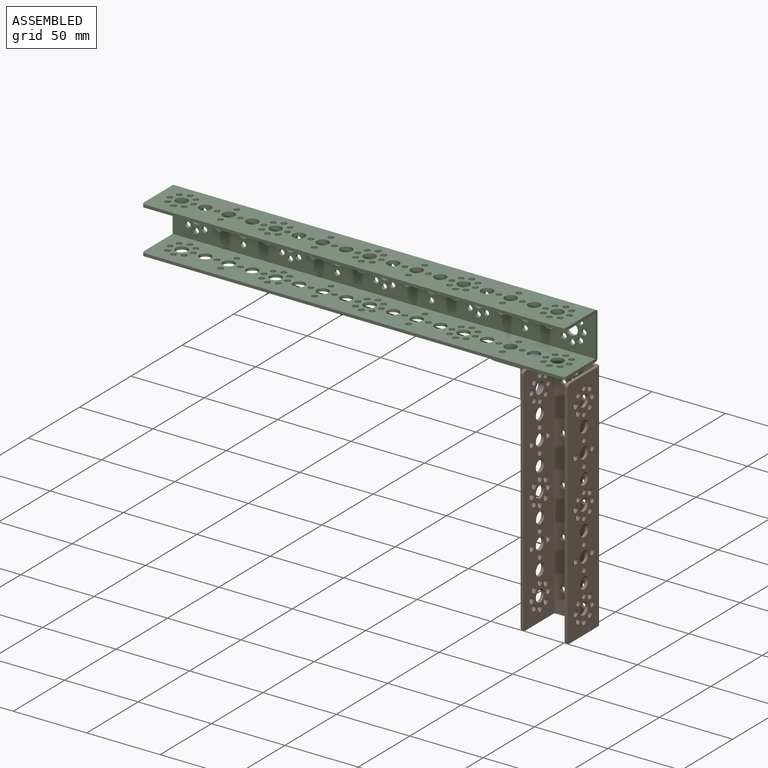
[diagram: assembled view]
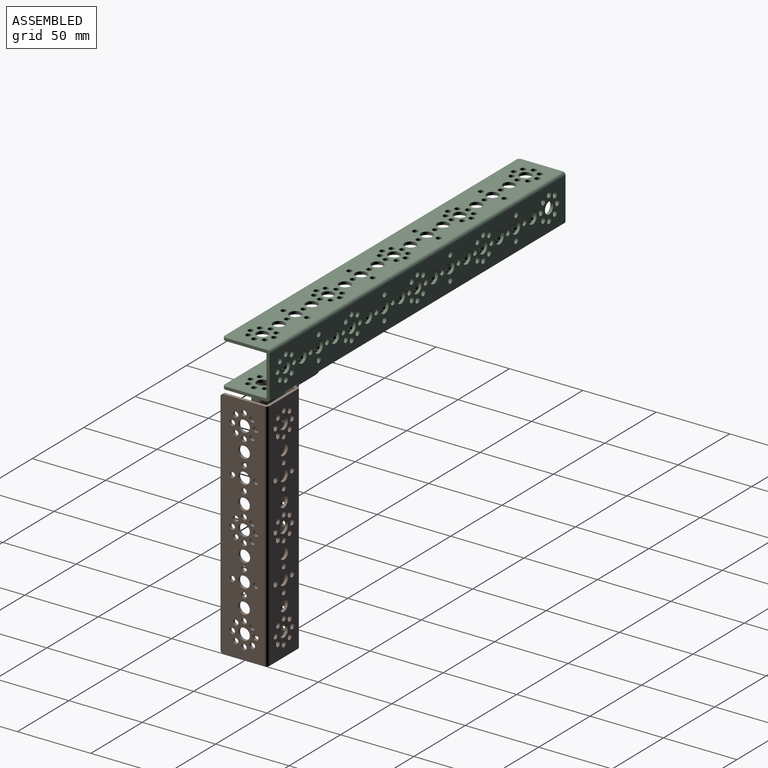
[diagram: assembled view, second angle]
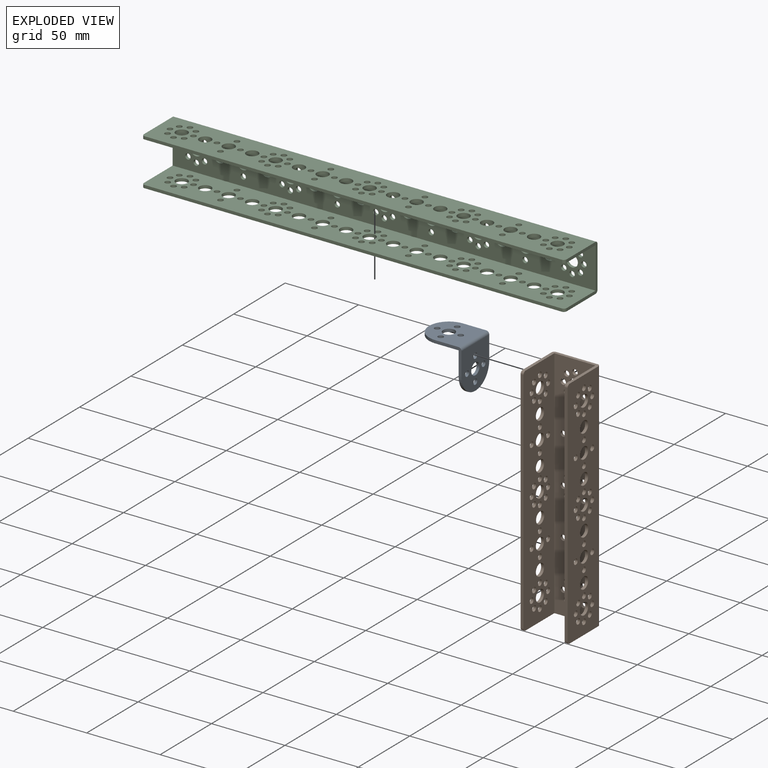
[diagram: exploded view]
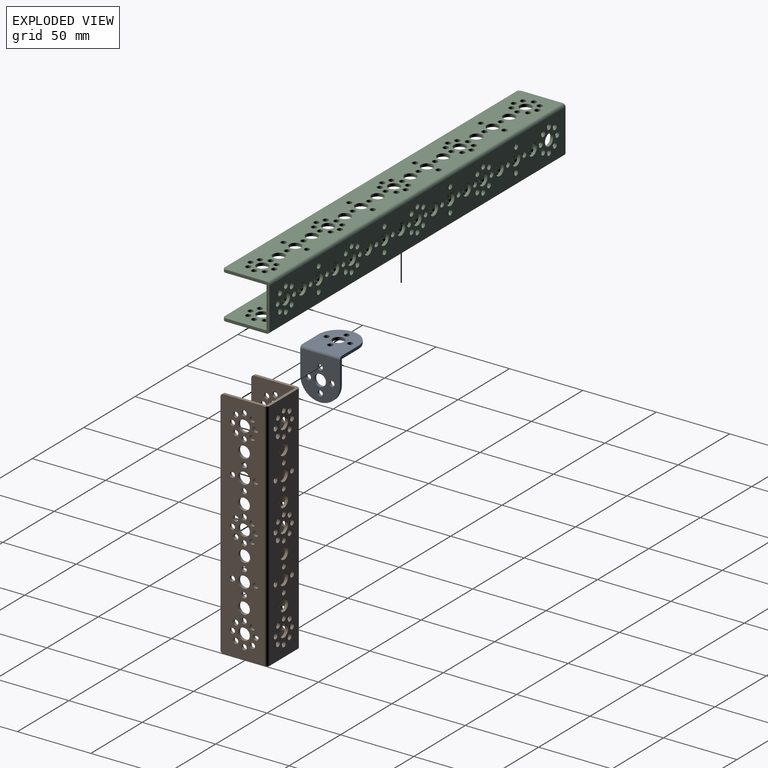
[diagram: exploded view, second angle]
ASSEMBLY  parts=3 mates=2
PART A: 19 faces, bbox 27x31.5x31.5 mm
  f0: cylinder r=1.85mm len=3.7mm, axis (0,-1,0), area 23.2mm2, adj f12,f13
  f1: cylinder r=1.85mm len=3.7mm, axis (0,-1,0), area 23.2mm2, adj f12,f13
  f2: cylinder r=1.85mm len=3.7mm, axis (0,-1,0), area 23.2mm2, adj f12,f13
  f3: cylinder r=1.85mm len=3.7mm, axis (0,-1,0), area 23.2mm2, adj f12,f13
  f4: cylinder r=4mm len=8mm, axis (0,-1,0), area 50.3mm2, adj f12,f13
  f5: cylinder r=1.85mm len=3.7mm, axis (0,0,1), area 23.2mm2, adj f10,f11
  f6: cylinder r=1.85mm len=3.7mm, axis (0,0,1), area 23.2mm2, adj f10,f11
  f7: cylinder r=1.85mm len=3.7mm, axis (0,0,1), area 23.2mm2, adj f10,f11
  f8: cylinder r=1.85mm len=3.7mm, axis (0,0,1), area 23.2mm2, adj f10,f11
  f9: cylinder r=4mm len=8mm, axis (0,0,1), area 50.3mm2, adj f10,f11
  f10: plane 29.5x27mm, normal (0,0,1), area 625mm2, adj f5,f6,f7,f8,f9,f14,f15,f16
  f11: plane 29.5x27mm, normal (0,0,-1), area 625mm2, adj f5,f6,f7,f8,f9,f12,f14,f15
  f12: plane 29.5x27mm, normal (0,1,0), area 625mm2, adj f0,f1,f2,f3,f4,f11,f14,f15
  f13: plane 29.5x27mm, normal (0,-1,0), area 625mm2, adj f0,f1,f2,f3,f4,f14,f15,f17
  f14: plane 18x18mm, normal (-1,0,0), area 67.1mm2, adj f10,f11,f12,f13,f16,f17,f18
  f15: plane 18x18mm, normal (1,0,0), area 67.1mm2, adj f10,f11,f12,f13,f16,f17,f18
  f16: cylinder r=13.5mm len=27mm, axis (0,0,1), area 84.8mm2, adj f10,f11,f14,f15
  f17: cylinder r=13.5mm len=27mm, axis (0,1,0), area 84.8mm2, adj f12,f13,f14,f15
  f18: cylinder r=2mm len=27mm, axis (1,0,0), area 84.8mm2, adj f10,f13,f14,f15
PART B: 139 faces, bbox 32x32x160 mm
  f0: cylinder r=1.85mm len=3.7mm, axis (1,0,0), area 23.2mm2, adj f123,f125
  f1: cylinder r=1.85mm len=3.7mm, axis (1,0,0), area 23.2mm2, adj f127,f129
  f2: cylinder r=1.85mm len=3.7mm, axis (1,0,0), area 23.2mm2, adj f123,f125
  f3: cylinder r=1.85mm len=3.7mm, axis (1,0,0), area 23.2mm2, adj f127,f129
  f4: cylinder r=1.85mm len=3.7mm, axis (1,0,0), area 23.2mm2, adj f123,f125
  f5: cylinder r=1.85mm len=3.7mm, axis (1,0,0), area 23.2mm2, adj f127,f129
  f6: cylinder r=1.85mm len=3.7mm, axis (1,0,0), area 23.2mm2, adj f123,f125
  f7: cylinder r=1.85mm len=3.7mm, axis (1,0,0), area 23.2mm2, adj f127,f129
  f8: cylinder r=1.85mm len=3.7mm, axis (1,0,0), area 23.2mm2, adj f123,f125
  f9: cylinder r=1.85mm len=3.7mm, axis (1,0,0), area 23.2mm2, adj f127,f129
  f10: cylinder r=1.85mm len=3.7mm, axis (1,0,0), area 23.2mm2, adj f123,f125
  f11: cylinder r=1.85mm len=3.7mm, axis (1,0,0), area 23.2mm2, adj f127,f129
  f12: cylinder r=4mm len=8mm, axis (1,0,0), area 50.3mm2, adj f123,f125
  f13: cylinder r=4mm len=8mm, axis (1,0,0), area 50.3mm2, adj f127,f129
  f14: cylinder r=1.85mm len=3.7mm, axis (1,0,0), area 23.2mm2, adj f123,f125
  f15: cylinder r=1.85mm len=3.7mm, axis (1,0,0), area 23.2mm2, adj f127,f129
  f16: cylinder r=1.85mm len=3.7mm, axis (1,0,0), area 23.2mm2, adj f123,f125
  f17: cylinder r=1.85mm len=3.7mm, axis (1,0,0), area 23.2mm2, adj f127,f129
  f18: cylinder r=1.85mm len=3.7mm, axis (1,0,0), area 23.2mm2, adj f123,f125
  f19: cylinder r=1.85mm len=3.7mm, axis (1,0,0), area 23.2mm2, adj f127,f129
  f20: cylinder r=1.85mm len=3.7mm, axis (1,0,0), area 23.2mm2, adj f123,f125
  f21: cylinder r=1.85mm len=3.7mm, axis (1,0,0), area 23.2mm2, adj f127,f129
  f22: cylinder r=1.85mm len=3.7mm, axis (1,0,0), area 23.2mm2, adj f123,f125
  f23: cylinder r=1.85mm len=3.7mm, axis (1,0,0), area 23.2mm2, adj f127,f129
  f24: cylinder r=1.85mm len=3.7mm, axis (1,0,0), area 23.2mm2, adj f123,f125
  f25: cylinder r=1.85mm len=3.7mm, axis (1,0,0), area 23.2mm2, adj f127,f129
  f26: cylinder r=1.85mm len=3.7mm, axis (1,0,0), area 23.2mm2, adj f123,f125
  f27: cylinder r=1.85mm len=3.7mm, axis (1,0,0), area 23.2mm2, adj f127,f129
  f28: cylinder r=1.85mm len=3.7mm, axis (1,0,0), area 23.2mm2, adj f123,f125
  f29: cylinder r=1.85mm len=3.7mm, axis (1,0,0), area 23.2mm2, adj f127,f129
  f30: cylinder r=1.85mm len=3.7mm, axis (1,0,0), area 23.2mm2, adj f123,f125
  f31: cylinder r=1.85mm len=3.7mm, axis (1,0,0), area 23.2mm2, adj f127,f129
  f32: cylinder r=1.85mm len=3.7mm, axis (1,0,0), area 23.2mm2, adj f123,f125
  f33: cylinder r=1.85mm len=3.7mm, axis (1,0,0), area 23.2mm2, adj f127,f129
  f34: cylinder r=4mm len=8mm, axis (1,0,0), area 50.3mm2, adj f123,f125
  f35: cylinder r=4mm len=8mm, axis (1,0,0), area 50.3mm2, adj f127,f129
  f36: cylinder r=1.85mm len=3.7mm, axis (1,0,0), area 23.2mm2, adj f123,f125
  f37: cylinder r=1.85mm len=3.7mm, axis (1,0,0), area 23.2mm2, adj f127,f129
  f38: cylinder r=1.85mm len=3.7mm, axis (1,0,0), area 23.2mm2, adj f123,f125
  f39: cylinder r=1.85mm len=3.7mm, axis (1,0,0), area 23.2mm2, adj f127,f129
  f40: cylinder r=1.85mm len=3.7mm, axis (1,0,0), area 23.2mm2, adj f123,f125
  f41: cylinder r=1.85mm len=3.7mm, axis (1,0,0), area 23.2mm2, adj f127,f129
  f42: cylinder r=1.85mm len=3.7mm, axis (1,0,0), area 23.2mm2, adj f123,f125
  f43: cylinder r=1.85mm len=3.7mm, axis (1,0,0), area 23.2mm2, adj f127,f129
  f44: cylinder r=4mm len=8mm, axis (1,0,0), area 50.3mm2, adj f123,f125
  f45: cylinder r=4mm len=8mm, axis (1,0,0), area 50.3mm2, adj f127,f129
  f46: cylinder r=1.85mm len=3.7mm, axis (1,0,0), area 23.2mm2, adj f123,f125
  f47: cylinder r=1.85mm len=3.7mm, axis (1,0,0), area 23.2mm2, adj f127,f129
  f48: cylinder r=1.85mm len=3.7mm, axis (1,0,0), area 23.2mm2, adj f123,f125
  f49: cylinder r=1.85mm len=3.7mm, axis (1,0,0), area 23.2mm2, adj f127,f129
  f50: cylinder r=1.85mm len=3.7mm, axis (1,0,0), area 23.2mm2, adj f123,f125
  f51: cylinder r=1.85mm len=3.7mm, axis (1,0,0), area 23.2mm2, adj f127,f129
  f52: cylinder r=1.85mm len=3.7mm, axis (1,0,0), area 23.2mm2, adj f123,f125
  f53: cylinder r=1.85mm len=3.7mm, axis (1,0,0), area 23.2mm2, adj f127,f129
  f54: cylinder r=1.85mm len=3.7mm, axis (1,0,0), area 23.2mm2, adj f123,f125
  f55: cylinder r=1.85mm len=3.7mm, axis (1,0,0), area 23.2mm2, adj f127,f129
  f56: cylinder r=1.85mm len=3.7mm, axis (1,0,0), area 23.2mm2, adj f123,f125
  f57: cylinder r=1.85mm len=3.7mm, axis (1,0,0), area 23.2mm2, adj f127,f129
  f58: cylinder r=1.85mm len=3.7mm, axis (1,0,0), area 23.2mm2, adj f123,f125
  f59: cylinder r=1.85mm len=3.7mm, axis (1,0,0), area 23.2mm2, adj f127,f129
  f60: cylinder r=1.85mm len=3.7mm, axis (1,0,0), area 23.2mm2, adj f123,f125
  f61: cylinder r=1.85mm len=3.7mm, axis (1,0,0), area 23.2mm2, adj f127,f129
  f62: cylinder r=4mm len=8mm, axis (1,0,0), area 50.3mm2, adj f123,f125
  f63: cylinder r=4mm len=8mm, axis (1,0,0), area 50.3mm2, adj f127,f129
  f64: cylinder r=1.85mm len=3.7mm, axis (1,0,0), area 23.2mm2, adj f123,f125
  f65: cylinder r=1.85mm len=3.7mm, axis (1,0,0), area 23.2mm2, adj f127,f129
  f66: cylinder r=1.85mm len=3.7mm, axis (1,0,0), area 23.2mm2, adj f123,f125
  f67: cylinder r=1.85mm len=3.7mm, axis (1,0,0), area 23.2mm2, adj f127,f129
  f68: cylinder r=1.85mm len=3.7mm, axis (1,0,0), area 23.2mm2, adj f123,f125
  f69: cylinder r=1.85mm len=3.7mm, axis (1,0,0), area 23.2mm2, adj f127,f129
  f70: cylinder r=1.85mm len=3.7mm, axis (1,0,0), area 23.2mm2, adj f123,f125
  f71: cylinder r=1.85mm len=3.7mm, axis (1,0,0), area 23.2mm2, adj f127,f129
  f72: cylinder r=4mm len=8mm, axis (1,0,0), area 50.3mm2, adj f123,f125
  f73: cylinder r=4mm len=8mm, axis (1,0,0), area 50.3mm2, adj f127,f129
  f74: cylinder r=4mm len=8mm, axis (1,0,0), area 50.3mm2, adj f123,f125
  f75: cylinder r=4mm len=8mm, axis (1,0,0), area 50.3mm2, adj f127,f129
  f76: cylinder r=4mm len=8mm, axis (1,0,0), area 50.3mm2, adj f123,f125
  f77: cylinder r=4mm len=8mm, axis (1,0,0), area 50.3mm2, adj f127,f129
  f78: cylinder r=4mm len=8mm, axis (1,0,0), area 50.3mm2, adj f123,f125
  f79: cylinder r=4mm len=8mm, axis (1,0,0), area 50.3mm2, adj f127,f129
  f80: cylinder r=4mm len=8mm, axis (1,0,0), area 50.3mm2, adj f123,f125
  f81: cylinder r=4mm len=8mm, axis (1,0,0), area 50.3mm2, adj f127,f129
  f82: cylinder r=1.85mm len=3.7mm, axis (0,1,0), area 23.2mm2, adj f126,f130
  f83: cylinder r=1.85mm len=3.7mm, axis (0,1,0), area 23.2mm2, adj f126,f130
  f84: cylinder r=1.85mm len=3.7mm, axis (0,1,0), area 23.2mm2, adj f126,f130
  f85: cylinder r=1.85mm len=3.7mm, axis (0,1,0), area 23.2mm2, adj f126,f130
  f86: cylinder r=1.85mm len=3.7mm, axis (0,1,0), area 23.2mm2, adj f126,f130
  f87: cylinder r=1.85mm len=3.7mm, axis (0,1,0), area 23.2mm2, adj f126,f130
  f88: cylinder r=4mm len=8mm, axis (0,1,0), area 50.3mm2, adj f126,f130
  f89: cylinder r=1.85mm len=3.7mm, axis (0,1,0), area 23.2mm2, adj f126,f130
  f90: cylinder r=1.85mm len=3.7mm, axis (0,1,0), area 23.2mm2, adj f126,f130
  f91: cylinder r=1.85mm len=3.7mm, axis (0,1,0), area 23.2mm2, adj f126,f130
  f92: cylinder r=1.85mm len=3.7mm, axis (0,1,0), area 23.2mm2, adj f126,f130
  f93: cylinder r=1.85mm len=3.7mm, axis (0,1,0), area 23.2mm2, adj f126,f130
  f94: cylinder r=1.85mm len=3.7mm, axis (0,1,0), area 23.2mm2, adj f126,f130
  f95: cylinder r=1.85mm len=3.7mm, axis (0,1,0), area 23.2mm2, adj f126,f130
  f96: cylinder r=1.85mm len=3.7mm, axis (0,1,0), area 23.2mm2, adj f126,f130
  f97: cylinder r=1.85mm len=3.7mm, axis (0,1,0), area 23.2mm2, adj f126,f130
  f98: cylinder r=1.85mm len=3.7mm, axis (0,1,0), area 23.2mm2, adj f126,f130
  f99: cylinder r=4mm len=8mm, axis (0,1,0), area 50.3mm2, adj f126,f130
  f100: cylinder r=1.85mm len=3.7mm, axis (0,1,0), area 23.2mm2, adj f126,f130
  f101: cylinder r=1.85mm len=3.7mm, axis (0,1,0), area 23.2mm2, adj f126,f130
  f102: cylinder r=1.85mm len=3.7mm, axis (0,1,0), area 23.2mm2, adj f126,f130
  f103: cylinder r=1.85mm len=3.7mm, axis (0,1,0), area 23.2mm2, adj f126,f130
  f104: cylinder r=4mm len=8mm, axis (0,1,0), area 50.3mm2, adj f126,f130
  f105: cylinder r=1.85mm len=3.7mm, axis (0,1,0), area 23.2mm2, adj f126,f130
  f106: cylinder r=1.85mm len=3.7mm, axis (0,1,0), area 23.2mm2, adj f126,f130
  f107: cylinder r=1.85mm len=3.7mm, axis (0,1,0), area 23.2mm2, adj f126,f130
  f108: cylinder r=1.85mm len=3.7mm, axis (0,1,0), area 23.2mm2, adj f126,f130
  f109: cylinder r=1.85mm len=3.7mm, axis (0,1,0), area 23.2mm2, adj f126,f130
  f110: cylinder r=1.85mm len=3.7mm, axis (0,1,0), area 23.2mm2, adj f126,f130
  f111: cylinder r=1.85mm len=3.7mm, axis (0,1,0), area 23.2mm2, adj f126,f130
  f112: cylinder r=1.85mm len=3.7mm, axis (0,1,0), area 23.2mm2, adj f126,f130
  f113: cylinder r=4mm len=8mm, axis (0,1,0), area 50.3mm2, adj f126,f130
  f114: cylinder r=1.85mm len=3.7mm, axis (0,1,0), area 23.2mm2, adj f126,f130
  f115: cylinder r=1.85mm len=3.7mm, axis (0,1,0), area 23.2mm2, adj f126,f130
  f116: cylinder r=1.85mm len=3.7mm, axis (0,1,0), area 23.2mm2, adj f126,f130
  f117: cylinder r=1.85mm len=3.7mm, axis (0,1,0), area 23.2mm2, adj f126,f130
  f118: cylinder r=4mm len=8mm, axis (0,1,0), area 50.3mm2, adj f126,f130
  f119: cylinder r=4mm len=8mm, axis (0,1,0), area 50.3mm2, adj f126,f130
  f120: cylinder r=4mm len=8mm, axis (0,1,0), area 50.3mm2, adj f126,f130
  f121: cylinder r=4mm len=8mm, axis (0,1,0), area 50.3mm2, adj f126,f130
  f122: cylinder r=4mm len=8mm, axis (0,1,0), area 50.3mm2, adj f126,f130
  f123: plane 160x30mm, normal (1,0,0), area 4001.8mm2, adj f0,f2,f4,f6,f8,f10,f12,f14
  f124: plane 156x2mm, normal (0,-1,0), area 312mm2, adj f123,f125,f134,f136
  f125: plane 160x30mm, normal (-1,0,0), area 4001.8mm2, adj f0,f2,f4,f6,f8,f10,f12,f14
  f126: plane 160x28mm, normal (0,-1,0), area 3683.5mm2, adj f82,f83,f84,f85,f86,f87,f88,f89
  f127: plane 160x30mm, normal (1,0,0), area 4001.8mm2, adj f1,f3,f5,f7,f9,f11,f13,f15
  f128: plane 156x2mm, normal (0,-1,0), area 312mm2, adj f127,f129,f133,f135
  f129: plane 160x30mm, normal (-1,0,0), area 4001.8mm2, adj f1,f3,f5,f7,f9,f11,f13,f15
  f130: plane 160x28mm, normal (0,1,0), area 3683.5mm2, adj f82,f83,f84,f85,f86,f87,f88,f89
  f131: plane 32x30mm, normal (0,0,-1), area 174.3mm2, adj f123,f125,f126,f127,f129,f130,f133,f134
  f132: plane 32x30mm, normal (0,0,1), area 174.3mm2, adj f123,f125,f126,f127,f129,f130,f135,f136
  f133: cylinder r=2mm len=2mm, axis (-1,0,0), area 6.3mm2, adj f127,f128,f129,f131
  f134: cylinder r=2mm len=2mm, axis (-1,0,0), area 6.3mm2, adj f123,f124,f125,f131
  f135: cylinder r=2mm len=2mm, axis (1,0,0), area 6.3mm2, adj f127,f128,f129,f132
  f136: cylinder r=2mm len=2mm, axis (1,0,0), area 6.3mm2, adj f123,f124,f125,f132
  f137: cylinder r=2mm len=160mm, axis (0,0,1), area 502.7mm2, adj f129,f130,f131,f132
  f138: cylinder r=2mm len=160mm, axis (0,0,1), area 502.7mm2, adj f123,f130,f131,f132
PART C: 235 faces, bbox 32x32x288 mm
  f0: cylinder r=1.85mm len=3.7mm, axis (1,0,0), area 23.2mm2, adj f219,f221
  f1: cylinder r=1.85mm len=3.7mm, axis (1,0,0), area 23.2mm2, adj f223,f225
  f2: cylinder r=1.85mm len=3.7mm, axis (1,0,0), area 23.2mm2, adj f219,f221
  f3: cylinder r=1.85mm len=3.7mm, axis (1,0,0), area 23.2mm2, adj f223,f225
  f4: cylinder r=1.85mm len=3.7mm, axis (1,0,0), area 23.2mm2, adj f219,f221
  f5: cylinder r=1.85mm len=3.7mm, axis (1,0,0), area 23.2mm2, adj f223,f225
  f6: cylinder r=1.85mm len=3.7mm, axis (1,0,0), area 23.2mm2, adj f219,f221
  f7: cylinder r=1.85mm len=3.7mm, axis (1,0,0), area 23.2mm2, adj f223,f225
  f8: cylinder r=1.85mm len=3.7mm, axis (1,0,0), area 23.2mm2, adj f219,f221
  f9: cylinder r=1.85mm len=3.7mm, axis (1,0,0), area 23.2mm2, adj f223,f225
  f10: cylinder r=1.85mm len=3.7mm, axis (1,0,0), area 23.2mm2, adj f219,f221
  f11: cylinder r=1.85mm len=3.7mm, axis (1,0,0), area 23.2mm2, adj f223,f225
  f12: cylinder r=4mm len=8mm, axis (1,0,0), area 50.3mm2, adj f219,f221
  f13: cylinder r=4mm len=8mm, axis (1,0,0), area 50.3mm2, adj f223,f225
  f14: cylinder r=1.85mm len=3.7mm, axis (1,0,0), area 23.2mm2, adj f219,f221
  f15: cylinder r=1.85mm len=3.7mm, axis (1,0,0), area 23.2mm2, adj f223,f225
  f16: cylinder r=1.85mm len=3.7mm, axis (1,0,0), area 23.2mm2, adj f219,f221
  f17: cylinder r=1.85mm len=3.7mm, axis (1,0,0), area 23.2mm2, adj f223,f225
  f18: cylinder r=1.85mm len=3.7mm, axis (1,0,0), area 23.2mm2, adj f219,f221
  f19: cylinder r=1.85mm len=3.7mm, axis (1,0,0), area 23.2mm2, adj f223,f225
  f20: cylinder r=1.85mm len=3.7mm, axis (1,0,0), area 23.2mm2, adj f219,f221
  f21: cylinder r=1.85mm len=3.7mm, axis (1,0,0), area 23.2mm2, adj f223,f225
  f22: cylinder r=1.85mm len=3.7mm, axis (1,0,0), area 23.2mm2, adj f219,f221
  f23: cylinder r=1.85mm len=3.7mm, axis (1,0,0), area 23.2mm2, adj f223,f225
  f24: cylinder r=1.85mm len=3.7mm, axis (1,0,0), area 23.2mm2, adj f219,f221
  f25: cylinder r=1.85mm len=3.7mm, axis (1,0,0), area 23.2mm2, adj f223,f225
  f26: cylinder r=1.85mm len=3.7mm, axis (1,0,0), area 23.2mm2, adj f219,f221
  f27: cylinder r=1.85mm len=3.7mm, axis (1,0,0), area 23.2mm2, adj f223,f225
  f28: cylinder r=1.85mm len=3.7mm, axis (1,0,0), area 23.2mm2, adj f219,f221
  f29: cylinder r=1.85mm len=3.7mm, axis (1,0,0), area 23.2mm2, adj f223,f225
  f30: cylinder r=1.85mm len=3.7mm, axis (1,0,0), area 23.2mm2, adj f219,f221
  f31: cylinder r=1.85mm len=3.7mm, axis (1,0,0), area 23.2mm2, adj f223,f225
  f32: cylinder r=1.85mm len=3.7mm, axis (1,0,0), area 23.2mm2, adj f219,f221
  f33: cylinder r=1.85mm len=3.7mm, axis (1,0,0), area 23.2mm2, adj f223,f225
  f34: cylinder r=4mm len=8mm, axis (1,0,0), area 50.3mm2, adj f219,f221
  f35: cylinder r=4mm len=8mm, axis (1,0,0), area 50.3mm2, adj f223,f225
  f36: cylinder r=1.85mm len=3.7mm, axis (1,0,0), area 23.2mm2, adj f219,f221
  f37: cylinder r=1.85mm len=3.7mm, axis (1,0,0), area 23.2mm2, adj f223,f225
  f38: cylinder r=1.85mm len=3.7mm, axis (1,0,0), area 23.2mm2, adj f219,f221
  f39: cylinder r=1.85mm len=3.7mm, axis (1,0,0), area 23.2mm2, adj f223,f225
  f40: cylinder r=1.85mm len=3.7mm, axis (1,0,0), area 23.2mm2, adj f219,f221
  f41: cylinder r=1.85mm len=3.7mm, axis (1,0,0), area 23.2mm2, adj f223,f225
  f42: cylinder r=1.85mm len=3.7mm, axis (1,0,0), area 23.2mm2, adj f219,f221
  f43: cylinder r=1.85mm len=3.7mm, axis (1,0,0), area 23.2mm2, adj f223,f225
  f44: cylinder r=4mm len=8mm, axis (1,0,0), area 50.3mm2, adj f219,f221
  f45: cylinder r=4mm len=8mm, axis (1,0,0), area 50.3mm2, adj f223,f225
  f46: cylinder r=1.85mm len=3.7mm, axis (1,0,0), area 23.2mm2, adj f219,f221
  f47: cylinder r=1.85mm len=3.7mm, axis (1,0,0), area 23.2mm2, adj f223,f225
  f48: cylinder r=1.85mm len=3.7mm, axis (1,0,0), area 23.2mm2, adj f219,f221
  f49: cylinder r=1.85mm len=3.7mm, axis (1,0,0), area 23.2mm2, adj f223,f225
  f50: cylinder r=1.85mm len=3.7mm, axis (1,0,0), area 23.2mm2, adj f219,f221
  f51: cylinder r=1.85mm len=3.7mm, axis (1,0,0), area 23.2mm2, adj f223,f225
  f52: cylinder r=1.85mm len=3.7mm, axis (1,0,0), area 23.2mm2, adj f219,f221
  f53: cylinder r=1.85mm len=3.7mm, axis (1,0,0), area 23.2mm2, adj f223,f225
  f54: cylinder r=1.85mm len=3.7mm, axis (1,0,0), area 23.2mm2, adj f219,f221
  f55: cylinder r=1.85mm len=3.7mm, axis (1,0,0), area 23.2mm2, adj f223,f225
  f56: cylinder r=1.85mm len=3.7mm, axis (1,0,0), area 23.2mm2, adj f219,f221
  f57: cylinder r=1.85mm len=3.7mm, axis (1,0,0), area 23.2mm2, adj f223,f225
  f58: cylinder r=1.85mm len=3.7mm, axis (1,0,0), area 23.2mm2, adj f219,f221
  f59: cylinder r=1.85mm len=3.7mm, axis (1,0,0), area 23.2mm2, adj f223,f225
  f60: cylinder r=1.85mm len=3.7mm, axis (1,0,0), area 23.2mm2, adj f219,f221
  f61: cylinder r=1.85mm len=3.7mm, axis (1,0,0), area 23.2mm2, adj f223,f225
  f62: cylinder r=4mm len=8mm, axis (1,0,0), area 50.3mm2, adj f219,f221
  f63: cylinder r=4mm len=8mm, axis (1,0,0), area 50.3mm2, adj f223,f225
  f64: cylinder r=1.85mm len=3.7mm, axis (1,0,0), area 23.2mm2, adj f219,f221
  f65: cylinder r=1.85mm len=3.7mm, axis (1,0,0), area 23.2mm2, adj f223,f225
  f66: cylinder r=1.85mm len=3.7mm, axis (1,0,0), area 23.2mm2, adj f219,f221
  f67: cylinder r=1.85mm len=3.7mm, axis (1,0,0), area 23.2mm2, adj f223,f225
  f68: cylinder r=1.85mm len=3.7mm, axis (1,0,0), area 23.2mm2, adj f219,f221
  f69: cylinder r=1.85mm len=3.7mm, axis (1,0,0), area 23.2mm2, adj f223,f225
  f70: cylinder r=1.85mm len=3.7mm, axis (1,0,0), area 23.2mm2, adj f219,f221
  f71: cylinder r=1.85mm len=3.7mm, axis (1,0,0), area 23.2mm2, adj f223,f225
  f72: cylinder r=4mm len=8mm, axis (1,0,0), area 50.3mm2, adj f219,f221
  f73: cylinder r=4mm len=8mm, axis (1,0,0), area 50.3mm2, adj f223,f225
  f74: cylinder r=4mm len=8mm, axis (1,0,0), area 50.3mm2, adj f219,f221
  f75: cylinder r=4mm len=8mm, axis (1,0,0), area 50.3mm2, adj f223,f225
  f76: cylinder r=4mm len=8mm, axis (1,0,0), area 50.3mm2, adj f219,f221
  f77: cylinder r=4mm len=8mm, axis (1,0,0), area 50.3mm2, adj f223,f225
  f78: cylinder r=4mm len=8mm, axis (1,0,0), area 50.3mm2, adj f219,f221
  f79: cylinder r=4mm len=8mm, axis (1,0,0), area 50.3mm2, adj f223,f225
  f80: cylinder r=4mm len=8mm, axis (1,0,0), area 50.3mm2, adj f219,f221
  f81: cylinder r=4mm len=8mm, axis (1,0,0), area 50.3mm2, adj f223,f225
  f82: cylinder r=1.85mm len=3.7mm, axis (1,0,0), area 23.2mm2, adj f219,f221
  f83: cylinder r=1.85mm len=3.7mm, axis (1,0,0), area 23.2mm2, adj f223,f225
  f84: cylinder r=1.85mm len=3.7mm, axis (1,0,0), area 23.2mm2, adj f219,f221
  f85: cylinder r=1.85mm len=3.7mm, axis (1,0,0), area 23.2mm2, adj f223,f225
  f86: cylinder r=1.85mm len=3.7mm, axis (1,0,0), area 23.2mm2, adj f219,f221
  f87: cylinder r=1.85mm len=3.7mm, axis (1,0,0), area 23.2mm2, adj f223,f225
  f88: cylinder r=1.85mm len=3.7mm, axis (1,0,0), area 23.2mm2, adj f219,f221
  f89: cylinder r=1.85mm len=3.7mm, axis (1,0,0), area 23.2mm2, adj f223,f225
  f90: cylinder r=1.85mm len=3.7mm, axis (1,0,0), area 23.2mm2, adj f219,f221
  f91: cylinder r=1.85mm len=3.7mm, axis (1,0,0), area 23.2mm2, adj f223,f225
  f92: cylinder r=1.85mm len=3.7mm, axis (1,0,0), area 23.2mm2, adj f219,f221
  f93: cylinder r=1.85mm len=3.7mm, axis (1,0,0), area 23.2mm2, adj f223,f225
  f94: cylinder r=1.85mm len=3.7mm, axis (1,0,0), area 23.2mm2, adj f219,f221
  f95: cylinder r=1.85mm len=3.7mm, axis (1,0,0), area 23.2mm2, adj f223,f225
  f96: cylinder r=1.85mm len=3.7mm, axis (1,0,0), area 23.2mm2, adj f219,f221
  f97: cylinder r=1.85mm len=3.7mm, axis (1,0,0), area 23.2mm2, adj f223,f225
  f98: cylinder r=4mm len=8mm, axis (1,0,0), area 50.3mm2, adj f219,f221
  f99: cylinder r=4mm len=8mm, axis (1,0,0), area 50.3mm2, adj f223,f225
  f100: cylinder r=1.85mm len=3.7mm, axis (1,0,0), area 23.2mm2, adj f219,f221
  f101: cylinder r=1.85mm len=3.7mm, axis (1,0,0), area 23.2mm2, adj f223,f225
  f102: cylinder r=1.85mm len=3.7mm, axis (1,0,0), area 23.2mm2, adj f219,f221
  f103: cylinder r=1.85mm len=3.7mm, axis (1,0,0), area 23.2mm2, adj f223,f225
  f104: cylinder r=1.85mm len=3.7mm, axis (1,0,0), area 23.2mm2, adj f219,f221
  f105: cylinder r=1.85mm len=3.7mm, axis (1,0,0), area 23.2mm2, adj f223,f225
  f106: cylinder r=1.85mm len=3.7mm, axis (1,0,0), area 23.2mm2, adj f219,f221
  f107: cylinder r=1.85mm len=3.7mm, axis (1,0,0), area 23.2mm2, adj f223,f225
  f108: cylinder r=4mm len=8mm, axis (1,0,0), area 50.3mm2, adj f219,f221
  f109: cylinder r=4mm len=8mm, axis (1,0,0), area 50.3mm2, adj f223,f225
  f110: cylinder r=1.85mm len=3.7mm, axis (1,0,0), area 23.2mm2, adj f219,f221
  f111: cylinder r=1.85mm len=3.7mm, axis (1,0,0), area 23.2mm2, adj f223,f225
  f112: cylinder r=1.85mm len=3.7mm, axis (1,0,0), area 23.2mm2, adj f219,f221
  f113: cylinder r=1.85mm len=3.7mm, axis (1,0,0), area 23.2mm2, adj f223,f225
  f114: cylinder r=1.85mm len=3.7mm, axis (1,0,0), area 23.2mm2, adj f219,f221
  f115: cylinder r=1.85mm len=3.7mm, axis (1,0,0), area 23.2mm2, adj f223,f225
  f116: cylinder r=1.85mm len=3.7mm, axis (1,0,0), area 23.2mm2, adj f219,f221
  f117: cylinder r=1.85mm len=3.7mm, axis (1,0,0), area 23.2mm2, adj f223,f225
  f118: cylinder r=1.85mm len=3.7mm, axis (1,0,0), area 23.2mm2, adj f219,f221
  f119: cylinder r=1.85mm len=3.7mm, axis (1,0,0), area 23.2mm2, adj f223,f225
  f120: cylinder r=1.85mm len=3.7mm, axis (1,0,0), area 23.2mm2, adj f219,f221
  f121: cylinder r=1.85mm len=3.7mm, axis (1,0,0), area 23.2mm2, adj f223,f225
  f122: cylinder r=4mm len=8mm, axis (1,0,0), area 50.3mm2, adj f219,f221
  f123: cylinder r=4mm len=8mm, axis (1,0,0), area 50.3mm2, adj f223,f225
  f124: cylinder r=1.85mm len=3.7mm, axis (1,0,0), area 23.2mm2, adj f219,f221
  f125: cylinder r=1.85mm len=3.7mm, axis (1,0,0), area 23.2mm2, adj f223,f225
  f126: cylinder r=1.85mm len=3.7mm, axis (1,0,0), area 23.2mm2, adj f219,f221
  f127: cylinder r=1.85mm len=3.7mm, axis (1,0,0), area 23.2mm2, adj f223,f225
  f128: cylinder r=1.85mm len=3.7mm, axis (1,0,0), area 23.2mm2, adj f219,f221
  f129: cylinder r=1.85mm len=3.7mm, axis (1,0,0), area 23.2mm2, adj f223,f225
  f130: cylinder r=1.85mm len=3.7mm, axis (1,0,0), area 23.2mm2, adj f219,f221
  f131: cylinder r=1.85mm len=3.7mm, axis (1,0,0), area 23.2mm2, adj f223,f225
  f132: cylinder r=4mm len=8mm, axis (1,0,0), area 50.3mm2, adj f219,f221
  f133: cylinder r=4mm len=8mm, axis (1,0,0), area 50.3mm2, adj f223,f225
  f134: cylinder r=4mm len=8mm, axis (1,0,0), area 50.3mm2, adj f219,f221
  f135: cylinder r=4mm len=8mm, axis (1,0,0), area 50.3mm2, adj f223,f225
  f136: cylinder r=4mm len=8mm, axis (1,0,0), area 50.3mm2, adj f219,f221
  f137: cylinder r=4mm len=8mm, axis (1,0,0), area 50.3mm2, adj f223,f225
  f138: cylinder r=4mm len=8mm, axis (1,0,0), area 50.3mm2, adj f219,f221
  f139: cylinder r=4mm len=8mm, axis (1,0,0), area 50.3mm2, adj f223,f225
  f140: cylinder r=4mm len=8mm, axis (1,0,0), area 50.3mm2, adj f219,f221
  f141: cylinder r=4mm len=8mm, axis (1,0,0), area 50.3mm2, adj f223,f225
  f142: cylinder r=1.85mm len=3.7mm, axis (1,0,0), area 23.2mm2, adj f219,f221
  f143: cylinder r=1.85mm len=3.7mm, axis (1,0,0), area 23.2mm2, adj f223,f225
  f144: cylinder r=1.85mm len=3.7mm, axis (1,0,0), area 23.2mm2, adj f219,f221
  f145: cylinder r=1.85mm len=3.7mm, axis (1,0,0), area 23.2mm2, adj f223,f225
  f146: cylinder r=1.85mm len=3.7mm, axis (0,1,0), area 23.2mm2, adj f222,f226
  f147: cylinder r=1.85mm len=3.7mm, axis (0,1,0), area 23.2mm2, adj f222,f226
  f148: cylinder r=1.85mm len=3.7mm, axis (0,1,0), area 23.2mm2, adj f222,f226
  f149: cylinder r=1.85mm len=3.7mm, axis (0,1,0), area 23.2mm2, adj f222,f226
  f150: cylinder r=1.85mm len=3.7mm, axis (0,1,0), area 23.2mm2, adj f222,f226
  f151: cylinder r=1.85mm len=3.7mm, axis (0,1,0), area 23.2mm2, adj f222,f226
  f152: cylinder r=4mm len=8mm, axis (0,1,0), area 50.3mm2, adj f222,f226
  f153: cylinder r=1.85mm len=3.7mm, axis (0,1,0), area 23.2mm2, adj f222,f226
  f154: cylinder r=1.85mm len=3.7mm, axis (0,1,0), area 23.2mm2, adj f222,f226
  f155: cylinder r=1.85mm len=3.7mm, axis (0,1,0), area 23.2mm2, adj f222,f226
  f156: cylinder r=1.85mm len=3.7mm, axis (0,1,0), area 23.2mm2, adj f222,f226
  f157: cylinder r=1.85mm len=3.7mm, axis (0,1,0), area 23.2mm2, adj f222,f226
  f158: cylinder r=1.85mm len=3.7mm, axis (0,1,0), area 23.2mm2, adj f222,f226
  f159: cylinder r=1.85mm len=3.7mm, axis (0,1,0), area 23.2mm2, adj f222,f226
  f160: cylinder r=1.85mm len=3.7mm, axis (0,1,0), area 23.2mm2, adj f222,f226
  f161: cylinder r=1.85mm len=3.7mm, axis (0,1,0), area 23.2mm2, adj f222,f226
  f162: cylinder r=1.85mm len=3.7mm, axis (0,1,0), area 23.2mm2, adj f222,f226
  f163: cylinder r=4mm len=8mm, axis (0,1,0), area 50.3mm2, adj f222,f226
  f164: cylinder r=1.85mm len=3.7mm, axis (0,1,0), area 23.2mm2, adj f222,f226
  f165: cylinder r=1.85mm len=3.7mm, axis (0,1,0), area 23.2mm2, adj f222,f226
  f166: cylinder r=1.85mm len=3.7mm, axis (0,1,0), area 23.2mm2, adj f222,f226
  f167: cylinder r=1.85mm len=3.7mm, axis (0,1,0), area 23.2mm2, adj f222,f226
  f168: cylinder r=4mm len=8mm, axis (0,1,0), area 50.3mm2, adj f222,f226
  f169: cylinder r=1.85mm len=3.7mm, axis (0,1,0), area 23.2mm2, adj f222,f226
  f170: cylinder r=1.85mm len=3.7mm, axis (0,1,0), area 23.2mm2, adj f222,f226
  f171: cylinder r=1.85mm len=3.7mm, axis (0,1,0), area 23.2mm2, adj f222,f226
  f172: cylinder r=1.85mm len=3.7mm, axis (0,1,0), area 23.2mm2, adj f222,f226
  f173: cylinder r=1.85mm len=3.7mm, axis (0,1,0), area 23.2mm2, adj f222,f226
  f174: cylinder r=1.85mm len=3.7mm, axis (0,1,0), area 23.2mm2, adj f222,f226
  f175: cylinder r=1.85mm len=3.7mm, axis (0,1,0), area 23.2mm2, adj f222,f226
  f176: cylinder r=1.85mm len=3.7mm, axis (0,1,0), area 23.2mm2, adj f222,f226
  f177: cylinder r=4mm len=8mm, axis (0,1,0), area 50.3mm2, adj f222,f226
  f178: cylinder r=1.85mm len=3.7mm, axis (0,1,0), area 23.2mm2, adj f222,f226
  f179: cylinder r=1.85mm len=3.7mm, axis (0,1,0), area 23.2mm2, adj f222,f226
  f180: cylinder r=1.85mm len=3.7mm, axis (0,1,0), area 23.2mm2, adj f222,f226
  f181: cylinder r=1.85mm len=3.7mm, axis (0,1,0), area 23.2mm2, adj f222,f226
  f182: cylinder r=4mm len=8mm, axis (0,1,0), area 50.3mm2, adj f222,f226
  f183: cylinder r=4mm len=8mm, axis (0,1,0), area 50.3mm2, adj f222,f226
  f184: cylinder r=4mm len=8mm, axis (0,1,0), area 50.3mm2, adj f222,f226
  f185: cylinder r=4mm len=8mm, axis (0,1,0), area 50.3mm2, adj f222,f226
  f186: cylinder r=4mm len=8mm, axis (0,1,0), area 50.3mm2, adj f222,f226
  f187: cylinder r=1.85mm len=3.7mm, axis (0,1,0), area 23.2mm2, adj f222,f226
  f188: cylinder r=1.85mm len=3.7mm, axis (0,1,0), area 23.2mm2, adj f222,f226
  f189: cylinder r=1.85mm len=3.7mm, axis (0,1,0), area 23.2mm2, adj f222,f226
  f190: cylinder r=1.85mm len=3.7mm, axis (0,1,0), area 23.2mm2, adj f222,f226
  f191: cylinder r=1.85mm len=3.7mm, axis (0,1,0), area 23.2mm2, adj f222,f226
  f192: cylinder r=1.85mm len=3.7mm, axis (0,1,0), area 23.2mm2, adj f222,f226
  f193: cylinder r=1.85mm len=3.7mm, axis (0,1,0), area 23.2mm2, adj f222,f226
  f194: cylinder r=1.85mm len=3.7mm, axis (0,1,0), area 23.2mm2, adj f222,f226
  f195: cylinder r=4mm len=8mm, axis (0,1,0), area 50.3mm2, adj f222,f226
  f196: cylinder r=1.85mm len=3.7mm, axis (0,1,0), area 23.2mm2, adj f222,f226
  f197: cylinder r=1.85mm len=3.7mm, axis (0,1,0), area 23.2mm2, adj f222,f226
  f198: cylinder r=1.85mm len=3.7mm, axis (0,1,0), area 23.2mm2, adj f222,f226
  f199: cylinder r=1.85mm len=3.7mm, axis (0,1,0), area 23.2mm2, adj f222,f226
  f200: cylinder r=4mm len=8mm, axis (0,1,0), area 50.3mm2, adj f222,f226
  f201: cylinder r=1.85mm len=3.7mm, axis (0,1,0), area 23.2mm2, adj f222,f226
  f202: cylinder r=1.85mm len=3.7mm, axis (0,1,0), area 23.2mm2, adj f222,f226
  f203: cylinder r=1.85mm len=3.7mm, axis (0,1,0), area 23.2mm2, adj f222,f226
  f204: cylinder r=1.85mm len=3.7mm, axis (0,1,0), area 23.2mm2, adj f222,f226
  f205: cylinder r=1.85mm len=3.7mm, axis (0,1,0), area 23.2mm2, adj f222,f226
  f206: cylinder r=1.85mm len=3.7mm, axis (0,1,0), area 23.2mm2, adj f222,f226
  f207: cylinder r=4mm len=8mm, axis (0,1,0), area 50.3mm2, adj f222,f226
  f208: cylinder r=1.85mm len=3.7mm, axis (0,1,0), area 23.2mm2, adj f222,f226
  f209: cylinder r=1.85mm len=3.7mm, axis (0,1,0), area 23.2mm2, adj f222,f226
  f210: cylinder r=1.85mm len=3.7mm, axis (0,1,0), area 23.2mm2, adj f222,f226
  f211: cylinder r=1.85mm len=3.7mm, axis (0,1,0), area 23.2mm2, adj f222,f226
  f212: cylinder r=4mm len=8mm, axis (0,1,0), area 50.3mm2, adj f222,f226
  f213: cylinder r=4mm len=8mm, axis (0,1,0), area 50.3mm2, adj f222,f226
  f214: cylinder r=4mm len=8mm, axis (0,1,0), area 50.3mm2, adj f222,f226
  f215: cylinder r=4mm len=8mm, axis (0,1,0), area 50.3mm2, adj f222,f226
  f216: cylinder r=4mm len=8mm, axis (0,1,0), area 50.3mm2, adj f222,f226
  f217: cylinder r=1.85mm len=3.7mm, axis (0,1,0), area 23.2mm2, adj f222,f226
  f218: cylinder r=1.85mm len=3.7mm, axis (0,1,0), area 23.2mm2, adj f222,f226
  f219: plane 288x30mm, normal (1,0,0), area 7181.7mm2, adj f0,f2,f4,f6,f8,f10,f12,f14
  f220: plane 284x2mm, normal (0,-1,0), area 568mm2, adj f219,f221,f230,f232
  f221: plane 288x30mm, normal (-1,0,0), area 7181.7mm2, adj f0,f2,f4,f6,f8,f10,f12,f14
  f222: plane 288x28mm, normal (0,-1,0), area 6607.4mm2, adj f146,f147,f148,f149,f150,f151,f152,f153
  f223: plane 288x30mm, normal (1,0,0), area 7181.7mm2, adj f1,f3,f5,f7,f9,f11,f13,f15
  f224: plane 284x2mm, normal (0,-1,0), area 568mm2, adj f223,f225,f229,f231
  f225: plane 288x30mm, normal (-1,0,0), area 7181.7mm2, adj f1,f3,f5,f7,f9,f11,f13,f15
  f226: plane 288x28mm, normal (0,1,0), area 6607.4mm2, adj f146,f147,f148,f149,f150,f151,f152,f153
  f227: plane 32x30mm, normal (0,0,-1), area 174.3mm2, adj f219,f221,f222,f223,f225,f226,f229,f230
  f228: plane 32x30mm, normal (0,0,1), area 174.3mm2, adj f219,f221,f222,f223,f225,f226,f231,f232
  f229: cylinder r=2mm len=2mm, axis (-1,0,0), area 6.3mm2, adj f223,f224,f225,f227
  f230: cylinder r=2mm len=2mm, axis (-1,0,0), area 6.3mm2, adj f219,f220,f221,f227
  f231: cylinder r=2mm len=2mm, axis (1,0,0), area 6.3mm2, adj f223,f224,f225,f228
  f232: cylinder r=2mm len=2mm, axis (1,0,0), area 6.3mm2, adj f219,f220,f221,f228
  f233: cylinder r=2mm len=288mm, axis (0,0,1), area 904.8mm2, adj f225,f226,f227,f228
  f234: cylinder r=2mm len=288mm, axis (0,0,1), area 904.8mm2, adj f219,f226,f227,f228
PLACE A rot(axis=(0,0,1),90deg) t=(156.06,-43.3,-13.78)mm
PLACE B t=(193.53,-44.06,4.26)mm
PLACE C rot(axis=(0,1,0),90deg) t=(207.53,-44.06,22.26)mm
MATE fastened C.f132 <-> A.f9  axis (0,0,-1) through (159.53,-44.06,6.26)mm
MATE fastened A.f4 <-> B.f62  axis (1,0,0) through (177.53,-44.06,-11.74)mm
